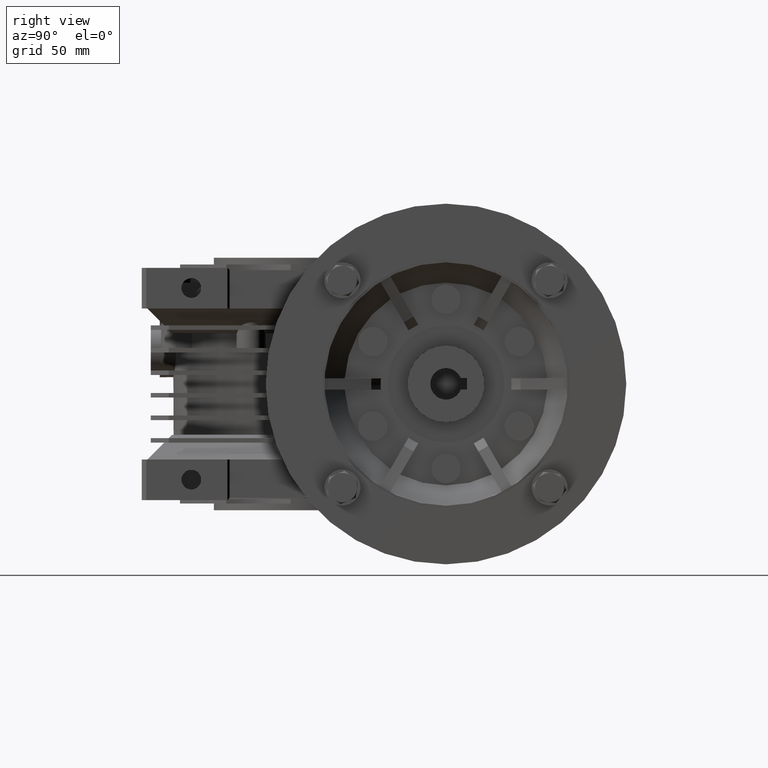
[diagram: clean part render]
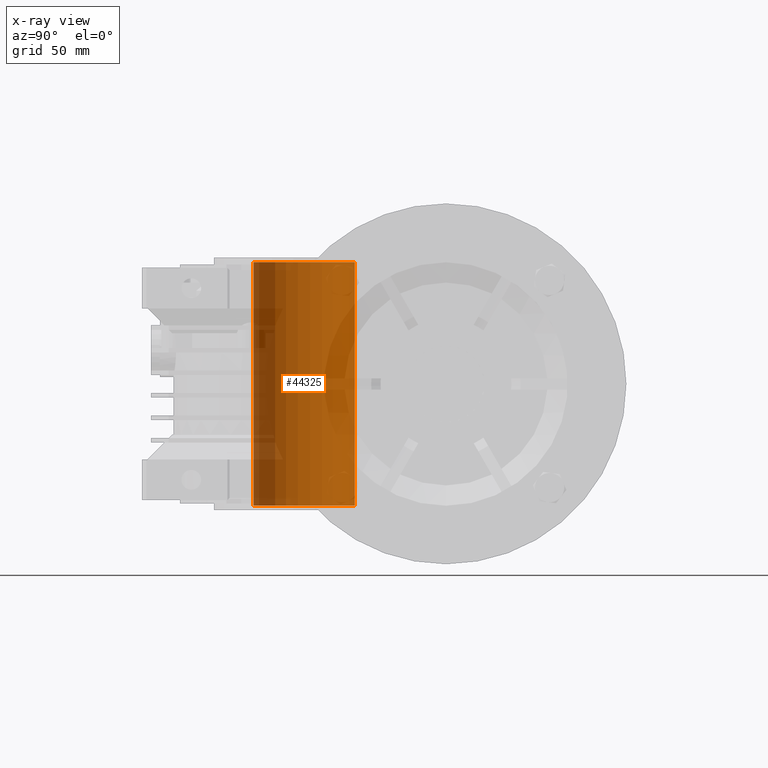
[diagram: x-ray — body ghosted, one internal face saturated and labeled with its STEP entity id]
A machine part, right view, then the same camera in x-ray: the body is ghosted and one INTERNAL B-rep face — a face not visible from any outside direction — is saturated and labeled: STEP entity #44325.
In plain terms, the highlighted cylindrical surface (partial cylindrical patch) has radius 22.5 mm, axis along (0, 0, 1).
Its self-contained STEP definition (entity closure, byte-faithful):
#913 = CARTESIAN_POINT ( 'NONE',  ( -2.755455298081544778E-15, -22.50000000000000000, -59.00000000000000000 ) ) ;
#5630 = CIRCLE ( 'NONE', #42979, 22.50000000000000000 ) ;
#6482 = DIRECTION ( 'NONE',  ( 0.000000000000000000, 0.000000000000000000, 1.000000000000000000 ) ) ;
#9410 = DIRECTION ( 'NONE',  ( 0.000000000000000000, 0.000000000000000000, 1.000000000000000000 ) ) ;
#10122 = DIRECTION ( 'NONE',  ( 0.000000000000000000, 1.000000000000000000, 0.000000000000000000 ) ) ;
#11372 = DIRECTION ( 'NONE',  ( 0.000000000000000000, 0.000000000000000000, 1.000000000000000000 ) ) ;
#11993 = VECTOR ( 'NONE', #11372, 1000.000000000000000 ) ;
#12139 = AXIS2_PLACEMENT_3D ( 'NONE', #25170, #24450, #21551 ) ;
#12510 = CYLINDRICAL_SURFACE ( 'NONE', #14454, 22.50000000000000000 ) ;
#13753 = EDGE_CURVE ( 'NONE', #23121, #33681, #47125, .T. ) ;
#14454 = AXIS2_PLACEMENT_3D ( 'NONE', #42507, #21026, #38862 ) ;
#14676 = VERTEX_POINT ( 'NONE', #46110 ) ;
#15034 = LINE ( 'NONE', #913, #11993 ) ;
#19530 = CARTESIAN_POINT ( 'NONE',  ( 0.000000000000000000, 22.50000000000000000, 54.00000000000000000 ) ) ;
#20882 = CARTESIAN_POINT ( 'NONE',  ( 0.000000000000000000, 22.50000000000000000, -59.00000000000000000 ) ) ;
#21026 = DIRECTION ( 'NONE',  ( 0.000000000000000000, 0.000000000000000000, 1.000000000000000000 ) ) ;
#21551 = DIRECTION ( 'NONE',  ( 0.000000000000000000, 1.000000000000000000, 0.000000000000000000 ) ) ;
#22751 = VERTEX_POINT ( 'NONE', #35315 ) ;
#23121 = VERTEX_POINT ( 'NONE', #34759 ) ;
#23306 = EDGE_CURVE ( 'NONE', #14676, #22751, #5630, .T. ) ;
#24450 = DIRECTION ( 'NONE',  ( 0.000000000000000000, 0.000000000000000000, -1.000000000000000000 ) ) ;
#25170 = CARTESIAN_POINT ( 'NONE',  ( 0.000000000000000000, 0.000000000000000000, 54.00000000000000000 ) ) ;
#25989 = EDGE_CURVE ( 'NONE', #14676, #33681, #36224, .T. ) ;
#29871 = ORIENTED_EDGE ( 'NONE', *, *, #13753, .F. ) ;
#30814 = FACE_OUTER_BOUND ( 'NONE', #44097, .T. ) ;
#33681 = VERTEX_POINT ( 'NONE', #19530 ) ;
#34759 = CARTESIAN_POINT ( 'NONE',  ( -2.755455298081544778E-15, -22.50000000000000000, 54.00000000000000000 ) ) ;
#35315 = CARTESIAN_POINT ( 'NONE',  ( -2.755455298081544778E-15, -22.50000000000000000, -54.00000000000000000 ) ) ;
#36197 = VECTOR ( 'NONE', #9410, 1000.000000000000000 ) ;
#36224 = LINE ( 'NONE', #20882, #36197 ) ;
#37176 = EDGE_CURVE ( 'NONE', #22751, #23121, #15034, .T. ) ;
#38862 = DIRECTION ( 'NONE',  ( 0.000000000000000000, 1.000000000000000000, 0.000000000000000000 ) ) ;
#38895 = ORIENTED_EDGE ( 'NONE', *, *, #25989, .T. ) ;
#40876 = ORIENTED_EDGE ( 'NONE', *, *, #23306, .F. ) ;
#42507 = CARTESIAN_POINT ( 'NONE',  ( 0.000000000000000000, 0.000000000000000000, -59.00000000000000000 ) ) ;
#42616 = ORIENTED_EDGE ( 'NONE', *, *, #37176, .F. ) ;
#42979 = AXIS2_PLACEMENT_3D ( 'NONE', #43986, #6482, #10122 ) ;
#43986 = CARTESIAN_POINT ( 'NONE',  ( 0.000000000000000000, 0.000000000000000000, -54.00000000000000000 ) ) ;
#44097 = EDGE_LOOP ( 'NONE', ( #42616, #40876, #38895, #29871 ) ) ;
#44325 = ADVANCED_FACE ( 'NONE', ( #30814 ), #12510, .F. ) ;
#46110 = CARTESIAN_POINT ( 'NONE',  ( 0.000000000000000000, 22.50000000000000000, -54.00000000000000000 ) ) ;
#47125 = CIRCLE ( 'NONE', #12139, 22.50000000000000000 ) ;